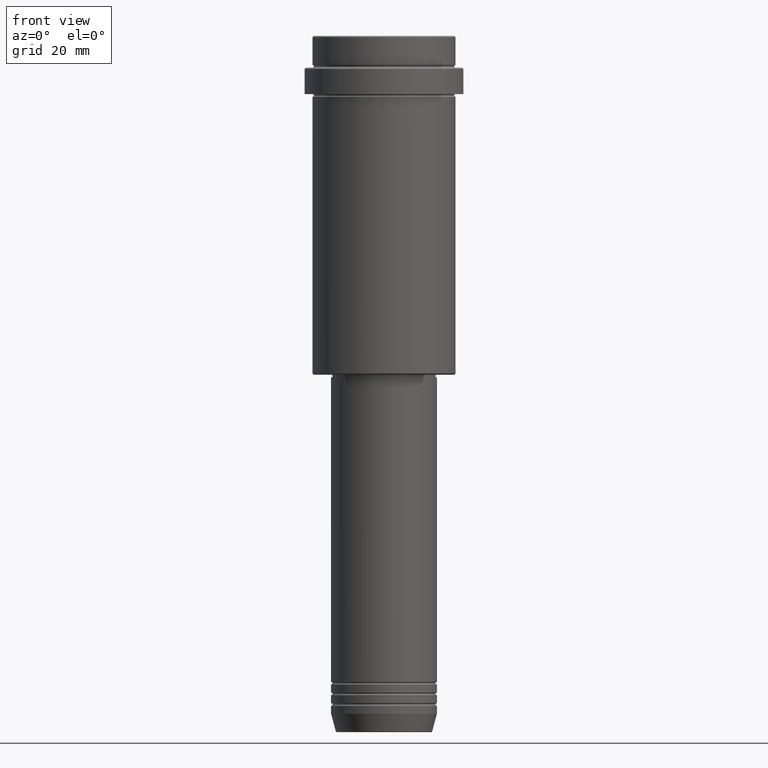
[diagram: clean part render]
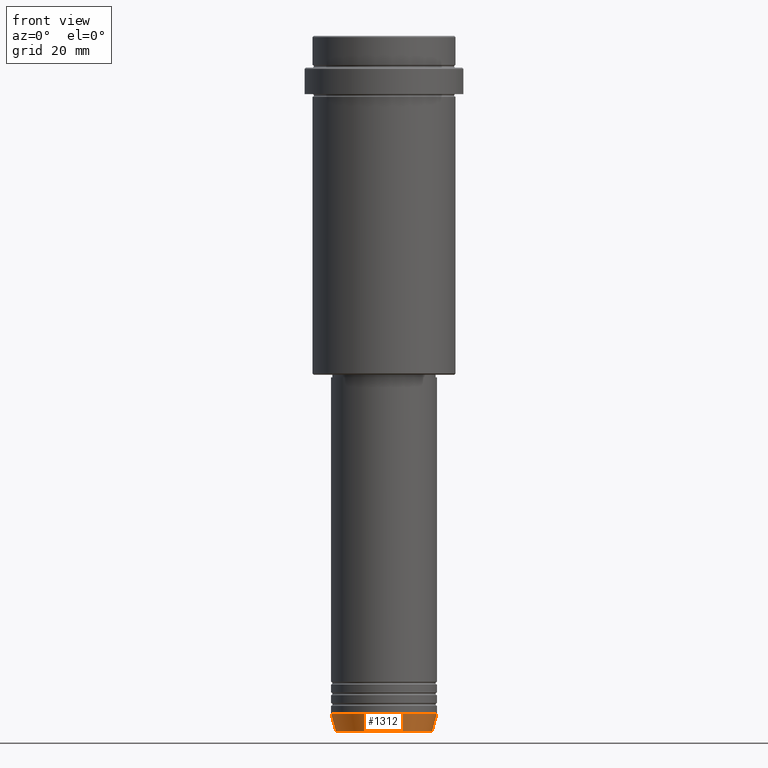
[diagram: same view with one face highlighted and labeled with its STEP entity id]
A machine part, front view. The second image highlights one B-rep face of the part: STEP entity #1312.
In plain terms, the highlighted conical surface has half-angle 15 deg.
Its self-contained STEP definition (entity closure, byte-faithful):
#77 = ORIENTED_EDGE ( 'NONE', *, *, #875, .F. ) ;
#97 = DIRECTION ( 'NONE',  ( 1.000000000000000000, 0.000000000000000000, 0.000000000000000000 ) ) ;
#100 = CARTESIAN_POINT ( 'NONE',  ( -20.00000000000000000, 2.449293598294706513E-15, -256.0000000000000000 ) ) ;
#127 = CARTESIAN_POINT ( 'NONE',  ( 20.00000000000000000, 0.000000000000000000, -256.0000000000000000 ) ) ;
#172 = CONICAL_SURFACE ( 'NONE', #1150, 20.00000000000000000, 0.2617993877991500740 ) ;
#175 = DIRECTION ( 'NONE',  ( 0.2588190451025213501, 0.000000000000000000, 0.9659258262890680902 ) ) ;
#187 = EDGE_LOOP ( 'NONE', ( #77, #513, #388, #1141 ) ) ;
#199 = DIRECTION ( 'NONE',  ( -0.000000000000000000, -0.000000000000000000, 1.000000000000000000 ) ) ;
#273 = VERTEX_POINT ( 'NONE', #127 ) ;
#302 = FACE_OUTER_BOUND ( 'NONE', #187, .T. ) ;
#388 = ORIENTED_EDGE ( 'NONE', *, *, #1163, .T. ) ;
#513 = ORIENTED_EDGE ( 'NONE', *, *, #909, .T. ) ;
#551 = VECTOR ( 'NONE', #590, 1000.000000000000000 ) ;
#582 = CARTESIAN_POINT ( 'NONE',  ( 18.22365507213718772, 0.000000000000000000, -262.6294095225512706 ) ) ;
#590 = DIRECTION ( 'NONE',  ( -0.2588190451025213501, 3.169619151431772337E-17, 0.9659258262890680902 ) ) ;
#625 = CARTESIAN_POINT ( 'NONE',  ( -18.22365507213718772, 2.340523841790264718E-15, -262.6294095225512706 ) ) ;
#631 = DIRECTION ( 'NONE',  ( 1.000000000000000000, 0.000000000000000000, 0.000000000000000000 ) ) ;
#662 = LINE ( 'NONE', #1142, #881 ) ;
#691 = VERTEX_POINT ( 'NONE', #100 ) ;
#710 = DIRECTION ( 'NONE',  ( -0.000000000000000000, -0.000000000000000000, 1.000000000000000000 ) ) ;
#724 = CIRCLE ( 'NONE', #965, 20.00000000000000000 ) ;
#731 = LINE ( 'NONE', #833, #551 ) ;
#795 = CIRCLE ( 'NONE', #950, 18.22365507213718772 ) ;
#809 = CARTESIAN_POINT ( 'NONE',  ( 0.000000000000000000, 0.000000000000000000, -256.0000000000000000 ) ) ;
#826 = VERTEX_POINT ( 'NONE', #625 ) ;
#833 = CARTESIAN_POINT ( 'NONE',  ( -20.00000000000000000, 2.449293598294706513E-15, -256.0000000000000000 ) ) ;
#875 = EDGE_CURVE ( 'NONE', #826, #691, #731, .T. ) ;
#881 = VECTOR ( 'NONE', #175, 1000.000000000000000 ) ;
#909 = EDGE_CURVE ( 'NONE', #826, #1136, #795, .T. ) ;
#950 = AXIS2_PLACEMENT_3D ( 'NONE', #1399, #199, #97 ) ;
#965 = AXIS2_PLACEMENT_3D ( 'NONE', #809, #710, #1137 ) ;
#1136 = VERTEX_POINT ( 'NONE', #582 ) ;
#1137 = DIRECTION ( 'NONE',  ( 1.000000000000000000, 0.000000000000000000, 0.000000000000000000 ) ) ;
#1141 = ORIENTED_EDGE ( 'NONE', *, *, #1285, .F. ) ;
#1142 = CARTESIAN_POINT ( 'NONE',  ( 20.00000000000000000, 0.000000000000000000, -256.0000000000000000 ) ) ;
#1150 = AXIS2_PLACEMENT_3D ( 'NONE', #1162, #1286, #631 ) ;
#1162 = CARTESIAN_POINT ( 'NONE',  ( 0.000000000000000000, 0.000000000000000000, -256.0000000000000000 ) ) ;
#1163 = EDGE_CURVE ( 'NONE', #1136, #273, #662, .T. ) ;
#1285 = EDGE_CURVE ( 'NONE', #691, #273, #724, .T. ) ;
#1286 = DIRECTION ( 'NONE',  ( -0.000000000000000000, -0.000000000000000000, 1.000000000000000000 ) ) ;
#1312 = ADVANCED_FACE ( 'NONE', ( #302 ), #172, .T. ) ;
#1399 = CARTESIAN_POINT ( 'NONE',  ( 0.000000000000000000, 0.000000000000000000, -262.6294095225512706 ) ) ;